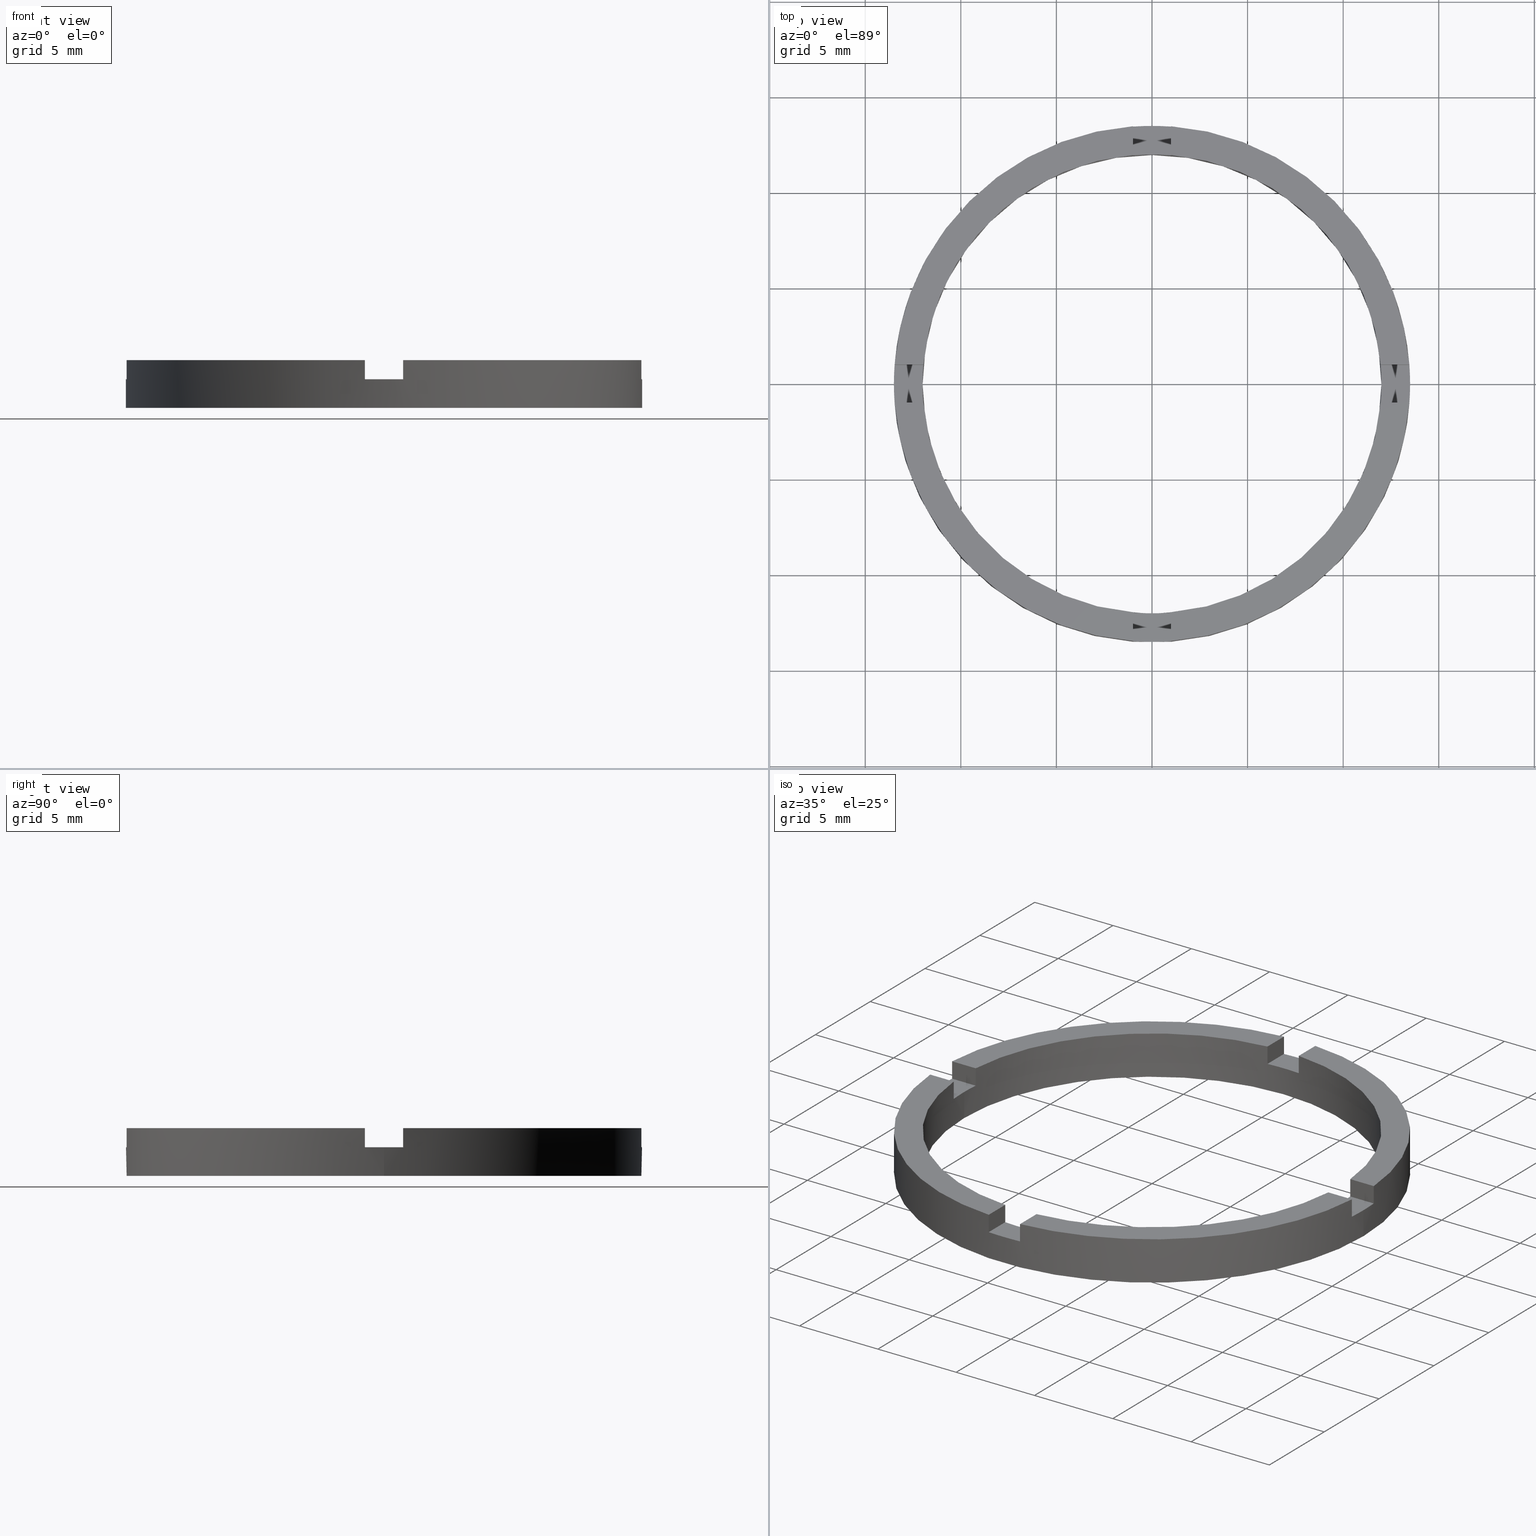
[diagram: canonical four-view strip — front | top / right | iso, engineering-drawing reading convention]
A machine part, canonical four-view strip (front | top / right | iso — engineering-drawing reading convention). The complete STEP part file that produces these views, byte-faithful:
ISO-10303-21;
HEADER;
FILE_DESCRIPTION (( 'STEP AP203' ),
    '1' );
FILE_NAME ('514061.step',
    '2024-12-26T02:33:49',
    ( 'MSI' ),
    ( '' ),
    'SwSTEP 2.0',
    'SolidWorks 2020',
    '' );
FILE_SCHEMA (( 'CONFIG_CONTROL_DESIGN' ));
ENDSEC;

DATA;
#1 = DIRECTION ( 'NONE',  ( -0.000000000000000000, -0.000000000000000000, -1.000000000000000000 ) ) ;
#2 = VECTOR ( 'NONE', #219, 1000.000000000000000 ) ;
#3 = LINE ( 'NONE', #604, #537 ) ;
#4 = DIRECTION ( 'NONE',  ( 0.000000000000000000, 0.000000000000000000, 1.000000000000000000 ) ) ;
#5 = LINE ( 'NONE', #525, #276 ) ;
#6 = CIRCLE ( 'NONE', #67, 12.00000000000000178 ) ;
#7 = CIRCLE ( 'NONE', #391, 12.00000000000000178 ) ;
#8 = FACE_OUTER_BOUND ( 'NONE', #701, .T. ) ;
#9 = FACE_OUTER_BOUND ( 'NONE', #466, .T. ) ;
#10 = CIRCLE ( 'NONE', #320, 13.50000000000000000 ) ;
#11 = CYLINDRICAL_SURFACE ( 'NONE', #81, 12.00000000000000178 ) ;
#12 = AXIS2_PLACEMENT_3D ( 'NONE', #343, #740, #346 ) ;
#13 = DIRECTION ( 'NONE',  ( 0.000000000000000000, 0.000000000000000000, 1.000000000000000000 ) ) ;
#14 = CARTESIAN_POINT ( 'NONE',  ( 0.000000000000000000, 0.000000000000000000, 0.000000000000000000 ) ) ;
#15 = CARTESIAN_POINT ( 'NONE',  ( 0.000000000000000000, 0.000000000000000000, 1.500000000000000000 ) ) ;
#16 = VECTOR ( 'NONE', #452, 1000.000000000000000 ) ;
#17 = CARTESIAN_POINT ( 'NONE',  ( 0.000000000000000000, 0.000000000000000000, 2.500000000000000000 ) ) ;
#18 = PLANE ( 'NONE',  #465 ) ;
#19 = CIRCLE ( 'NONE', #750, 13.50000000000000000 ) ;
#20 = CARTESIAN_POINT ( 'NONE',  ( 0.000000000000000000, 0.000000000000000000, 1.500000000000000000 ) ) ;
#21 = DIRECTION ( 'NONE',  ( 1.000000000000000000, 0.000000000000000000, 0.000000000000000000 ) ) ;
#22 = LINE ( 'NONE', #324, #25 ) ;
#23 = CARTESIAN_POINT ( 'NONE',  ( -1.000000000000024647, 13.46291201783625802, 2.500000000000000000 ) ) ;
#24 = AXIS2_PLACEMENT_3D ( 'NONE', #70, #130, #438 ) ;
#25 = VECTOR ( 'NONE', #353, 1000.000000000000000 ) ;
#26 = PLANE ( 'NONE',  #293 ) ;
#27 = EDGE_CURVE ( 'NONE', #702, #669, #758, .T. ) ;
#28 = FACE_OUTER_BOUND ( 'NONE', #207, .T. ) ;
#29 = DIRECTION ( 'NONE',  ( 0.000000000000000000, 0.000000000000000000, 1.000000000000000000 ) ) ;
#30 = EDGE_CURVE ( 'NONE', #422, #682, #237, .T. ) ;
#31 = VECTOR ( 'NONE', #566, 1000.000000000000000 ) ;
#32 = PERSON_AND_ORGANIZATION_ROLE ( 'design_owner' ) ;
#33 = CARTESIAN_POINT ( 'NONE',  ( 0.000000000000000000, 0.000000000000000000, 2.500000000000000000 ) ) ;
#34 = CYLINDRICAL_SURFACE ( 'NONE', #294, 12.00000000000000178 ) ;
#35 = PERSON_AND_ORGANIZATION_ROLE ( 'design_supplier' ) ;
#36 = LINE ( 'NONE', #463, #307 ) ;
#37 = ADVANCED_FACE ( 'NONE', ( #760 ), #26, .F. ) ;
#38 = VECTOR ( 'NONE', #508, 1000.000000000000000 ) ;
#39 = FACE_OUTER_BOUND ( 'NONE', #459, .T. ) ;
#40 = AXIS2_PLACEMENT_3D ( 'NONE', #151, #295, #610 ) ;
#41 = LINE ( 'NONE', #557, #318 ) ;
#42 = EDGE_CURVE ( 'NONE', #490, #404, #249, .T. ) ;
#43 = LINE ( 'NONE', #433, #319 ) ;
#44 = DIRECTION ( 'NONE',  ( 0.000000000000000000, 0.000000000000000000, 1.000000000000000000 ) ) ;
#45 = AXIS2_PLACEMENT_3D ( 'NONE', #299, #402, #309 ) ;
#46 = CARTESIAN_POINT ( 'NONE',  ( -1.000000000000163203, -13.46291201783624736, 2.500000000000000000 ) ) ;
#47 = ADVANCED_FACE ( 'NONE', ( #707 ), #103, .F. ) ;
#48 = CARTESIAN_POINT ( 'NONE',  ( 13.50000000000000000, 1.653273178848926867E-15, 2.500000000000000000 ) ) ;
#49 = DIRECTION ( 'NONE',  ( -0.000000000000000000, 0.000000000000000000, 1.000000000000000000 ) ) ;
#50 = CARTESIAN_POINT ( 'NONE',  ( 13.46291201783624736, -1.000000000000159650, 2.500000000000000000 ) ) ;
#51 = AXIS2_PLACEMENT_3D ( 'NONE', #654, #327, #410 ) ;
#52 = CARTESIAN_POINT ( 'NONE',  ( -13.50000000000000000, 0.000000000000000000, 1.500000000000000000 ) ) ;
#53 = PLANE ( 'NONE',  #333 ) ;
#54 = CC_DESIGN_DATE_AND_TIME_ASSIGNMENT ( #118, #80, ( #695 ) ) ;
#55 = DIRECTION ( 'NONE',  ( 0.000000000000000000, 1.000000000000000000, 0.000000000000000000 ) ) ;
#56 = CARTESIAN_POINT ( 'NONE',  ( 0.000000000000000000, 0.000000000000000000, 2.500000000000000000 ) ) ;
#57 = CARTESIAN_POINT ( 'NONE',  ( 0.000000000000000000, 0.000000000000000000, 1.500000000000000000 ) ) ;
#58 = EDGE_CURVE ( 'NONE', #453, #430, #203, .T. ) ;
#59 = CARTESIAN_POINT ( 'NONE',  ( 13.50000000000000000, 1.653273178848926867E-15, 1.500000000000000000 ) ) ;
#60 = DIRECTION ( 'NONE',  ( 0.000000000000000000, 0.000000000000000000, 1.000000000000000000 ) ) ;
#61 = DIRECTION ( 'NONE',  ( 0.000000000000000000, -0.000000000000000000, 1.000000000000000000 ) ) ;
#62 = EDGE_CURVE ( 'NONE', #431, #375, #417, .T. ) ;
#63 = DIRECTION ( 'NONE',  ( 0.000000000000000000, 0.000000000000000000, 1.000000000000000000 ) ) ;
#64 = DIRECTION ( 'NONE',  ( 0.000000000000000000, 0.000000000000000000, 1.000000000000000000 ) ) ;
#65 = DIRECTION ( 'NONE',  ( 0.000000000000000000, 0.000000000000000000, 1.000000000000000000 ) ) ;
#66 = CARTESIAN_POINT ( 'NONE',  ( 0.000000000000000000, 0.000000000000000000, 2.500000000000000000 ) ) ;
#67 = AXIS2_PLACEMENT_3D ( 'NONE', #339, #470, #477 ) ;
#68 = EDGE_CURVE ( 'NONE', #734, #427, #450, .T. ) ;
#69 =( NAMED_UNIT ( * ) SI_UNIT ( $, .STERADIAN. ) SOLID_ANGLE_UNIT ( ) );
#70 = CARTESIAN_POINT ( 'NONE',  ( 0.000000000000000000, 0.000000000000000000, 0.000000000000000000 ) ) ;
#71 = DIRECTION ( 'NONE',  ( -1.000000000000000000, 0.000000000000000000, 0.000000000000000000 ) ) ;
#72 = CARTESIAN_POINT ( 'NONE',  ( 0.000000000000000000, 0.000000000000000000, 0.000000000000000000 ) ) ;
#73 = DIRECTION ( 'NONE',  ( 0.000000000000000000, -0.000000000000000000, 1.000000000000000000 ) ) ;
#74 = DIRECTION ( 'NONE',  ( 1.000000000000000000, 0.000000000000000000, 0.000000000000000000 ) ) ;
#75 = APPLICATION_CONTEXT ( 'configuration controlled 3d designs of mechanical parts and assemblies' ) ;
#76 = DIRECTION ( 'NONE',  ( 1.000000000000000000, 1.301042606982605567E-16, 0.000000000000000000 ) ) ;
#77 = EDGE_CURVE ( 'NONE', #490, #161, #157, .T. ) ;
#78 = DIRECTION ( 'NONE',  ( 1.301042606982605567E-16, -1.000000000000000000, 0.000000000000000000 ) ) ;
#79 = EDGE_CURVE ( 'NONE', #650, #193, #159, .T. ) ;
#80 = DATE_TIME_ROLE ( 'creation_date' ) ;
#81 = AXIS2_PLACEMENT_3D ( 'NONE', #17, #284, #454 ) ;
#82 = PRODUCT_DEFINITION_FORMATION_WITH_SPECIFIED_SOURCE ( '�κ�', '', #468, .NOT_KNOWN. ) ;
#83 = CARTESIAN_POINT ( 'NONE',  ( -13.46291201783626157, 0.9999999999999774625, 2.500000000000000000 ) ) ;
#84 = ADVANCED_FACE ( 'NONE', ( #683 ), #181, .T. ) ;
#85 = EDGE_CURVE ( 'NONE', #717, #195, #686, .T. ) ;
#86 = CARTESIAN_POINT ( 'NONE',  ( 3.499999999999999556, 0.9999999999998400169, 1.500000000000000000 ) ) ;
#87 = DIRECTION ( 'NONE',  ( -1.000000000000000000, -4.336808689942018352E-17, 0.000000000000000000 ) ) ;
#88 = ADVANCED_FACE ( 'NONE', ( #703 ), #635, .F. ) ;
#89 = EDGE_CURVE ( 'NONE', #242, #162, #712, .T. ) ;
#90 = DIRECTION ( 'NONE',  ( -0.000000000000000000, -0.000000000000000000, -1.000000000000000000 ) ) ;
#91 = ADVANCED_FACE ( 'NONE', ( #680, #206 ), #347, .F. ) ;
#92 = EDGE_CURVE ( 'NONE', #713, #375, #716, .T. ) ;
#93 = LOCAL_TIME ( 10, 33, 49.00000000000000000, #114 ) ;
#94 = DIRECTION ( 'NONE',  ( 0.000000000000000000, 0.000000000000000000, 1.000000000000000000 ) ) ;
#95 = CARTESIAN_POINT ( 'NONE',  ( -1.000000000000024647, 11.95826074310139830, 2.500000000000000000 ) ) ;
#96 = DIRECTION ( 'NONE',  ( -4.336808689942018352E-17, 1.000000000000000000, 0.000000000000000000 ) ) ;
#97 = CARTESIAN_POINT ( 'NONE',  ( 11.95826074310141429, 0.9999999999998402389, 1.500000000000000000 ) ) ;
#98 = EDGE_CURVE ( 'NONE', #734, #150, #178, .T. ) ;
#99 = CARTESIAN_POINT ( 'NONE',  ( 0.9999999999999753530, 13.46291201783626335, 2.500000000000000000 ) ) ;
#100 = CARTESIAN_POINT ( 'NONE',  ( -13.46291201783625802, -1.000000000000022649, 1.500000000000000000 ) ) ;
#101 = DIRECTION ( 'NONE',  ( 1.000000000000000000, 0.000000000000000000, 0.000000000000000000 ) ) ;
#102 = DIRECTION ( 'NONE',  ( 0.000000000000000000, 0.000000000000000000, 1.000000000000000000 ) ) ;
#103 = PLANE ( 'NONE',  #259 ) ;
#104 = AXIS2_PLACEMENT_3D ( 'NONE', #608, #601, #679 ) ;
#105 = CC_DESIGN_APPROVAL ( #589, ( #165 ) ) ;
#106 = CARTESIAN_POINT ( 'NONE',  ( -11.95826074310139830, -1.000000000000022427, 2.500000000000000000 ) ) ;
#107 = DIRECTION ( 'NONE',  ( 1.000000000000000000, 0.000000000000000000, 0.000000000000000000 ) ) ;
#108 = AXIS2_PLACEMENT_3D ( 'NONE', #15, #63, #109 ) ;
#109 = DIRECTION ( 'NONE',  ( 1.000000000000000000, 0.000000000000000000, 0.000000000000000000 ) ) ;
#110 = CARTESIAN_POINT ( 'NONE',  ( 3.499999999999999556, -1.000000000000160094, 1.500000000000000000 ) ) ;
#111 = EDGE_CURVE ( 'NONE', #434, #221, #696, .T. ) ;
#112 = DIRECTION ( 'NONE',  ( 1.000000000000000000, 0.000000000000000000, 0.000000000000000000 ) ) ;
#113 = CC_DESIGN_PERSON_AND_ORGANIZATION_ASSIGNMENT ( #116, #32, ( #468 ) ) ;
#114 = COORDINATED_UNIVERSAL_TIME_OFFSET ( 8, 0, .AHEAD. ) ;
#115 = ORIENTED_EDGE ( 'NONE', *, *, #738, .F. ) ;
#116 = PERSON_AND_ORGANIZATION ( #461, #400 ) ;
#117 = DIRECTION ( 'NONE',  ( -0.000000000000000000, 0.000000000000000000, 1.000000000000000000 ) ) ;
#118 = DATE_AND_TIME ( #143, #649 ) ;
#119 = EDGE_LOOP ( 'NONE', ( #201, #217, #692, #386 ) ) ;
#120 = LOCAL_TIME ( 10, 33, 49.00000000000000000, #124 ) ;
#121 = VERTEX_POINT ( 'NONE', #257 ) ;
#122 = DIRECTION ( 'NONE',  ( -1.000000000000000000, -1.734723475976807341E-16, 0.000000000000000000 ) ) ;
#123 = EDGE_CURVE ( 'NONE', #191, #145, #441, .T. ) ;
#124 = COORDINATED_UNIVERSAL_TIME_OFFSET ( 8, 0, .AHEAD. ) ;
#125 = ORIENTED_EDGE ( 'NONE', *, *, #651, .F. ) ;
#126 = ORIENTED_EDGE ( 'NONE', *, *, #613, .F. ) ;
#127 = APPROVAL_PERSON_ORGANIZATION ( #371, #460, #367 ) ;
#128 = ORIENTED_EDGE ( 'NONE', *, *, #613, .T. ) ;
#129 = ORIENTED_EDGE ( 'NONE', *, *, #574, .T. ) ;
#130 = DIRECTION ( 'NONE',  ( 0.000000000000000000, 0.000000000000000000, 1.000000000000000000 ) ) ;
#131 = ORIENTED_EDGE ( 'NONE', *, *, #715, .T. ) ;
#132 = APPROVAL_DATE_TIME ( #368, #321 ) ;
#133 = ORIENTED_EDGE ( 'NONE', *, *, #574, .F. ) ;
#134 = CARTESIAN_POINT ( 'NONE',  ( -1.000000000000163425, -11.95826074310138765, 1.500000000000000000 ) ) ;
#135 = APPROVAL_DATE_TIME ( #381, #460 ) ;
#136 = ORIENTED_EDGE ( 'NONE', *, *, #27, .F. ) ;
#137 = PERSON_AND_ORGANIZATION ( #461, #400 ) ;
#138 = CARTESIAN_POINT ( 'NONE',  ( 0.9999999999999753530, 11.95826074310140363, 2.500000000000000000 ) ) ;
#139 = ORIENTED_EDGE ( 'NONE', *, *, #281, .F. ) ;
#140 = ORIENTED_EDGE ( 'NONE', *, *, #111, .F. ) ;
#141 = PERSON_AND_ORGANIZATION ( #461, #400 ) ;
#142 = ORIENTED_EDGE ( 'NONE', *, *, #258, .F. ) ;
#143 = CALENDAR_DATE ( 2024, 26, 12 ) ;
#144 = PERSON_AND_ORGANIZATION ( #461, #400 ) ;
#145 = VERTEX_POINT ( 'NONE', #591 ) ;
#146 = APPROVAL_STATUS ( 'not_yet_approved' ) ;
#147 = ORIENTED_EDGE ( 'NONE', *, *, #593, .T. ) ;
#148 = DIRECTION ( 'NONE',  ( -1.301042606982605567E-16, 1.000000000000000000, 0.000000000000000000 ) ) ;
#149 = ORIENTED_EDGE ( 'NONE', *, *, #429, .T. ) ;
#150 = VERTEX_POINT ( 'NONE', #736 ) ;
#151 = CARTESIAN_POINT ( 'NONE',  ( 0.000000000000000000, 0.000000000000000000, 2.500000000000000000 ) ) ;
#152 = ORIENTED_EDGE ( 'NONE', *, *, #98, .T. ) ;
#153 = DIRECTION ( 'NONE',  ( 1.000000000000000000, 0.000000000000000000, 0.000000000000000000 ) ) ;
#154 = ORIENTED_EDGE ( 'NONE', *, *, #89, .F. ) ;
#155 = ORIENTED_EDGE ( 'NONE', *, *, #587, .F. ) ;
#156 = DIRECTION ( 'NONE',  ( 0.000000000000000000, 0.000000000000000000, 1.000000000000000000 ) ) ;
#157 = LINE ( 'NONE', #252, #710 ) ;
#158 = ORIENTED_EDGE ( 'NONE', *, *, #505, .T. ) ;
#159 = LINE ( 'NONE', #627, #200 ) ;
#160 = ORIENTED_EDGE ( 'NONE', *, *, #631, .F. ) ;
#161 = VERTEX_POINT ( 'NONE', #99 ) ;
#162 = VERTEX_POINT ( 'NONE', #361 ) ;
#163 = EDGE_LOOP ( 'NONE', ( #136, #204 ) ) ;
#164 = AXIS2_PLACEMENT_3D ( 'NONE', #56, #446, #326 ) ;
#165 = SECURITY_CLASSIFICATION ( '', '', #527 ) ;
#166 = ORIENTED_EDGE ( 'NONE', *, *, #501, .T. ) ;
#167 = ADVANCED_FACE ( 'NONE', ( #187 ), #11, .F. ) ;
#168 = CARTESIAN_POINT ( 'NONE',  ( -13.46291201783625802, -1.000000000000022649, 2.500000000000000000 ) ) ;
#169 = ORIENTED_EDGE ( 'NONE', *, *, #304, .F. ) ;
#170 = ORIENTED_EDGE ( 'NONE', *, *, #30, .F. ) ;
#171 = ORIENTED_EDGE ( 'NONE', *, *, #749, .T. ) ;
#172 = ORIENTED_EDGE ( 'NONE', *, *, #501, .F. ) ;
#173 = ORIENTED_EDGE ( 'NONE', *, *, #77, .F. ) ;
#174 = ADVANCED_FACE ( 'NONE', ( #539 ), #211, .T. ) ;
#175 = ORIENTED_EDGE ( 'NONE', *, *, #268, .T. ) ;
#176 = CARTESIAN_POINT ( 'NONE',  ( -1.000000000000024647, 13.46291201783625802, 1.500000000000000000 ) ) ;
#177 = AXIS2_PLACEMENT_3D ( 'NONE', #573, #763, #594 ) ;
#178 = CIRCLE ( 'NONE', #45, 13.50000000000000000 ) ;
#179 = EDGE_LOOP ( 'NONE', ( #160, #737, #129, #186 ) ) ;
#180 = ORIENTED_EDGE ( 'NONE', *, *, #548, .F. ) ;
#181 = PLANE ( 'NONE',  #359 ) ;
#182 = VECTOR ( 'NONE', #344, 1000.000000000000000 ) ;
#183 = ORIENTED_EDGE ( 'NONE', *, *, #623, .F. ) ;
#184 = EDGE_CURVE ( 'NONE', #191, #161, #10, .T. ) ;
#185 = DIRECTION ( 'NONE',  ( 0.000000000000000000, -0.000000000000000000, 1.000000000000000000 ) ) ;
#186 = ORIENTED_EDGE ( 'NONE', *, *, #85, .F. ) ;
#187 = FACE_OUTER_BOUND ( 'NONE', #681, .T. ) ;
#188 = VERTEX_POINT ( 'NONE', #334 ) ;
#189 = ORIENTED_EDGE ( 'NONE', *, *, #340, .T. ) ;
#190 = CARTESIAN_POINT ( 'NONE',  ( 0.9999999999998354649, -3.500000000000183409, 1.500000000000000000 ) ) ;
#191 = VERTEX_POINT ( 'NONE', #569 ) ;
#192 = CARTESIAN_POINT ( 'NONE',  ( -1.000000000000024647, 11.95826074310139830, 2.500000000000000000 ) ) ;
#193 = VERTEX_POINT ( 'NONE', #322 ) ;
#194 = DIRECTION ( 'NONE',  ( 0.000000000000000000, 0.000000000000000000, 1.000000000000000000 ) ) ;
#195 = VERTEX_POINT ( 'NONE', #507 ) ;
#196 = CARTESIAN_POINT ( 'NONE',  ( -1.000000000000163425, -11.95826074310138765, 2.500000000000000000 ) ) ;
#197 = DIRECTION ( 'NONE',  ( 1.000000000000000000, 0.000000000000000000, -0.000000000000000000 ) ) ;
#198 = EDGE_LOOP ( 'NONE', ( #462, #189, #721, #172, #437, #727, #689, #637, #215, #667, #212, #406 ) ) ;
#199 = EDGE_CURVE ( 'NONE', #431, #434, #272, .T. ) ;
#200 = VECTOR ( 'NONE', #714, 1000.000000000000000 ) ;
#201 = ORIENTED_EDGE ( 'NONE', *, *, #409, .F. ) ;
#202 = AXIS2_PLACEMENT_3D ( 'NONE', #245, #301, #590 ) ;
#203 = LINE ( 'NONE', #262, #671 ) ;
#204 = ORIENTED_EDGE ( 'NONE', *, *, #600, .F. ) ;
#205 = CARTESIAN_POINT ( 'NONE',  ( -12.00000000000000178, 0.000000000000000000, 2.500000000000000000 ) ) ;
#206 = FACE_BOUND ( 'NONE', #448, .T. ) ;
#207 = EDGE_LOOP ( 'NONE', ( #718, #474, #674, #662 ) ) ;
#208 = DIRECTION ( 'NONE',  ( 1.000000000000000000, 0.000000000000000000, 0.000000000000000000 ) ) ;
#209 = ORIENTED_EDGE ( 'NONE', *, *, #300, .F. ) ;
#210 = ORIENTED_EDGE ( 'NONE', *, *, #449, .T. ) ;
#211 = PLANE ( 'NONE',  #164 ) ;
#212 = ORIENTED_EDGE ( 'NONE', *, *, #184, .F. ) ;
#213 = PLANE ( 'NONE',  #51 ) ;
#214 = ORIENTED_EDGE ( 'NONE', *, *, #342, .T. ) ;
#215 = ORIENTED_EDGE ( 'NONE', *, *, #42, .F. ) ;
#216 = CARTESIAN_POINT ( 'NONE',  ( -13.46291201783626157, 0.9999999999999774625, 1.500000000000000000 ) ) ;
#217 = ORIENTED_EDGE ( 'NONE', *, *, #429, .F. ) ;
#218 = ORIENTED_EDGE ( 'NONE', *, *, #651, .T. ) ;
#219 = DIRECTION ( 'NONE',  ( -0.000000000000000000, -0.000000000000000000, -1.000000000000000000 ) ) ;
#220 = ORIENTED_EDGE ( 'NONE', *, *, #250, .T. ) ;
#221 = VERTEX_POINT ( 'NONE', #264 ) ;
#222 = CARTESIAN_POINT ( 'NONE',  ( 0.000000000000000000, 0.000000000000000000, 1.500000000000000000 ) ) ;
#223 = ORIENTED_EDGE ( 'NONE', *, *, #580, .T. ) ;
#224 = ORIENTED_EDGE ( 'NONE', *, *, #300, .T. ) ;
#225 = EDGE_LOOP ( 'NONE', ( #171, #759, #158, #634, #155, #214 ) ) ;
#226 = CARTESIAN_POINT ( 'NONE',  ( 0.000000000000000000, 0.000000000000000000, 1.500000000000000000 ) ) ;
#227 = EDGE_CURVE ( 'NONE', #191, #647, #3, .T. ) ;
#228 = DIRECTION ( 'NONE',  ( -0.000000000000000000, -0.000000000000000000, -1.000000000000000000 ) ) ;
#229 = ORIENTED_EDGE ( 'NONE', *, *, #85, .T. ) ;
#230 = CARTESIAN_POINT ( 'NONE',  ( 0.000000000000000000, 0.000000000000000000, 1.500000000000000000 ) ) ;
#231 = ORIENTED_EDGE ( 'NONE', *, *, #281, .T. ) ;
#232 = ORIENTED_EDGE ( 'NONE', *, *, #111, .T. ) ;
#233 = CARTESIAN_POINT ( 'NONE',  ( -13.50000000000000000, 0.000000000000000000, 0.000000000000000000 ) ) ;
#234 = DIRECTION ( 'NONE',  ( 0.000000000000000000, 1.000000000000000000, 0.000000000000000000 ) ) ;
#235 = VECTOR ( 'NONE', #617, 1000.000000000000000 ) ;
#236 = APPLICATION_PROTOCOL_DEFINITION ( 'international standard', 'config_control_design', 1994, #75 ) ;
#237 = LINE ( 'NONE', #503, #496 ) ;
#238 = ORIENTED_EDGE ( 'NONE', *, *, #356, .F. ) ;
#239 = VERTEX_POINT ( 'NONE', #521 ) ;
#240 = ORIENTED_EDGE ( 'NONE', *, *, #42, .T. ) ;
#241 = PLANE ( 'NONE',  #622 ) ;
#242 = VERTEX_POINT ( 'NONE', #134 ) ;
#243 = AXIS2_PLACEMENT_3D ( 'NONE', #624, #407, #397 ) ;
#244 = ADVANCED_FACE ( 'NONE', ( #9 ), #526, .T. ) ;
#245 = CARTESIAN_POINT ( 'NONE',  ( 0.000000000000000000, 0.000000000000000000, 1.500000000000000000 ) ) ;
#246 = LINE ( 'NONE', #48, #248 ) ;
#247 = ORIENTED_EDGE ( 'NONE', *, *, #738, .T. ) ;
#248 = VECTOR ( 'NONE', #1, 1000.000000000000000 ) ;
#249 = CIRCLE ( 'NONE', #551, 13.50000000000000000 ) ;
#250 = EDGE_CURVE ( 'NONE', #663, #195, #530, .T. ) ;
#251 = FACE_OUTER_BOUND ( 'NONE', #424, .T. ) ;
#252 = CARTESIAN_POINT ( 'NONE',  ( 0.9999999999999753530, 13.46291201783626335, 2.500000000000000000 ) ) ;
#253 = LINE ( 'NONE', #395, #768 ) ;
#254 = CARTESIAN_POINT ( 'NONE',  ( 12.00000000000000178, 1.469576158976824144E-15, 1.500000000000000000 ) ) ;
#255 = VECTOR ( 'NONE', #384, 1000.000000000000000 ) ;
#256 = AXIS2_PLACEMENT_3D ( 'NONE', #270, #362, #553 ) ;
#257 = CARTESIAN_POINT ( 'NONE',  ( 12.00000000000000178, 1.469576158976824144E-15, 0.000000000000000000 ) ) ;
#258 = EDGE_CURVE ( 'NONE', #650, #444, #534, .T. ) ;
#259 = AXIS2_PLACEMENT_3D ( 'NONE', #550, #266, #323 ) ;
#260 = CIRCLE ( 'NONE', #279, 12.00000000000000178 ) ;
#261 = LINE ( 'NONE', #694, #518 ) ;
#262 = CARTESIAN_POINT ( 'NONE',  ( 11.95826074310138765, -1.000000000000159872, 2.500000000000000000 ) ) ;
#263 = VECTOR ( 'NONE', #775, 1000.000000000000000 ) ;
#264 = CARTESIAN_POINT ( 'NONE',  ( -1.000000000000024647, 11.95826074310139830, 1.500000000000000000 ) ) ;
#265 = CIRCLE ( 'NONE', #202, 12.00000000000000178 ) ;
#266 = DIRECTION ( 'NONE',  ( -1.000000000000000000, -1.301042606982605567E-16, 0.000000000000000000 ) ) ;
#267 = LINE ( 'NONE', #196, #568 ) ;
#268 = EDGE_CURVE ( 'NONE', #401, #430, #7, .T. ) ;
#269 = DIRECTION ( 'NONE',  ( 0.000000000000000000, 0.000000000000000000, 1.000000000000000000 ) ) ;
#270 = CARTESIAN_POINT ( 'NONE',  ( -3.500000000000186962, 0.9999999999999792388, 1.500000000000000000 ) ) ;
#271 = DIRECTION ( 'NONE',  ( 4.336808689942018352E-17, -1.000000000000000000, 0.000000000000000000 ) ) ;
#272 = LINE ( 'NONE', #562, #275 ) ;
#273 = LINE ( 'NONE', #351, #528 ) ;
#274 = CARTESIAN_POINT ( 'NONE',  ( -3.500000000000186962, 0.9999999999999792388, 2.500000000000000000 ) ) ;
#275 = VECTOR ( 'NONE', #597, 1000.000000000000000 ) ;
#276 = VECTOR ( 'NONE', #234, 1000.000000000000000 ) ;
#277 = DIRECTION ( 'NONE',  ( 0.000000000000000000, 0.000000000000000000, 1.000000000000000000 ) ) ;
#278 = LINE ( 'NONE', #779, #535 ) ;
#279 = AXIS2_PLACEMENT_3D ( 'NONE', #770, #467, #74 ) ;
#280 = LINE ( 'NONE', #274, #541 ) ;
#281 = EDGE_CURVE ( 'NONE', #379, #393, #282, .T. ) ;
#282 = LINE ( 'NONE', #205, #2 ) ;
#283 = PLANE ( 'NONE',  #177 ) ;
#284 = DIRECTION ( 'NONE',  ( -0.000000000000000000, -0.000000000000000000, -1.000000000000000000 ) ) ;
#285 = CARTESIAN_POINT ( 'NONE',  ( 0.9999999999999753530, 13.46291201783626335, 1.500000000000000000 ) ) ;
#286 = CC_DESIGN_SECURITY_CLASSIFICATION ( #165, ( #82 ) ) ;
#287 = PLANE ( 'NONE',  #755 ) ;
#288 = CARTESIAN_POINT ( 'NONE',  ( 0.000000000000000000, 0.000000000000000000, 1.500000000000000000 ) ) ;
#289 = MECHANICAL_CONTEXT ( 'NONE', #766, 'mechanical' ) ;
#290 = CARTESIAN_POINT ( 'NONE',  ( -12.00000000000000178, 0.000000000000000000, 0.000000000000000000 ) ) ;
#291 = EDGE_CURVE ( 'NONE', #682, #375, #280, .T. ) ;
#292 = CIRCLE ( 'NONE', #641, 13.50000000000000000 ) ;
#293 = AXIS2_PLACEMENT_3D ( 'NONE', #110, #271, #329 ) ;
#294 = AXIS2_PLACEMENT_3D ( 'NONE', #330, #228, #602 ) ;
#295 = DIRECTION ( 'NONE',  ( 0.000000000000000000, 0.000000000000000000, 1.000000000000000000 ) ) ;
#296 = CARTESIAN_POINT ( 'NONE',  ( 0.9999999999998365752, -11.95826074310141429, 2.500000000000000000 ) ) ;
#297 = CIRCLE ( 'NONE', #108, 12.00000000000000178 ) ;
#298 = FACE_OUTER_BOUND ( 'NONE', #119, .T. ) ;
#299 = CARTESIAN_POINT ( 'NONE',  ( 0.000000000000000000, 0.000000000000000000, 2.500000000000000000 ) ) ;
#300 = EDGE_CURVE ( 'NONE', #444, #150, #273, .T. ) ;
#301 = DIRECTION ( 'NONE',  ( 0.000000000000000000, 0.000000000000000000, 1.000000000000000000 ) ) ;
#302 = DIRECTION ( 'NONE',  ( -1.000000000000000000, 0.000000000000000000, 0.000000000000000000 ) ) ;
#303 = CARTESIAN_POINT ( 'NONE',  ( 0.000000000000000000, 0.000000000000000000, 2.500000000000000000 ) ) ;
#304 = EDGE_CURVE ( 'NONE', #239, #490, #5, .T. ) ;
#305 = ADVANCED_FACE ( 'NONE', ( #8 ), #577, .T. ) ;
#306 = SHAPE_DEFINITION_REPRESENTATION ( #524, #605 ) ;
#307 = VECTOR ( 'NONE', #502, 1000.000000000000000 ) ;
#308 = VECTOR ( 'NONE', #560, 1000.000000000000000 ) ;
#309 = DIRECTION ( 'NONE',  ( 1.000000000000000000, 0.000000000000000000, 0.000000000000000000 ) ) ;
#310 = FACE_OUTER_BOUND ( 'NONE', #657, .T. ) ;
#311 = PLANE ( 'NONE',  #243 ) ;
#312 = DIRECTION ( 'NONE',  ( 1.000000000000000000, 0.000000000000000000, -0.000000000000000000 ) ) ;
#313 = LINE ( 'NONE', #522, #308 ) ;
#314 = CIRCLE ( 'NONE', #559, 13.50000000000000000 ) ;
#315 = DESIGN_CONTEXT ( 'detailed design', #75, 'design' ) ;
#316 = ADVANCED_FACE ( 'NONE', ( #532 ), #311, .F. ) ;
#317 = LINE ( 'NONE', #443, #38 ) ;
#318 = VECTOR ( 'NONE', #598, 1000.000000000000000 ) ;
#319 = VECTOR ( 'NONE', #494, 1000.000000000000000 ) ;
#320 = AXIS2_PLACEMENT_3D ( 'NONE', #513, #432, #21 ) ;
#321 = APPROVAL ( #146, 'δָ��' ) ;
#322 = CARTESIAN_POINT ( 'NONE',  ( -11.95826074310139830, -1.000000000000022427, 1.500000000000000000 ) ) ;
#323 = DIRECTION ( 'NONE',  ( 1.301042606982605567E-16, -1.000000000000000000, 0.000000000000000000 ) ) ;
#324 = CARTESIAN_POINT ( 'NONE',  ( 3.499999999999999556, -1.000000000000160094, 1.500000000000000000 ) ) ;
#325 = EDGE_CURVE ( 'NONE', #242, #188, #6, .T. ) ;
#326 = DIRECTION ( 'NONE',  ( 1.000000000000000000, 0.000000000000000000, -0.000000000000000000 ) ) ;
#327 = DIRECTION ( 'NONE',  ( 0.000000000000000000, 0.000000000000000000, 1.000000000000000000 ) ) ;
#328 = CARTESIAN_POINT ( 'NONE',  ( -13.46291201783625802, -1.000000000000022649, 2.500000000000000000 ) ) ;
#329 = DIRECTION ( 'NONE',  ( 1.000000000000000000, 4.336808689942018352E-17, 0.000000000000000000 ) ) ;
#330 = CARTESIAN_POINT ( 'NONE',  ( 0.000000000000000000, 0.000000000000000000, 2.500000000000000000 ) ) ;
#331 = EDGE_CURVE ( 'NONE', #239, #706, #278, .T. ) ;
#332 = DIRECTION ( 'NONE',  ( 1.000000000000000000, 0.000000000000000000, 0.000000000000000000 ) ) ;
#333 = AXIS2_PLACEMENT_3D ( 'NONE', #544, #420, #547 ) ;
#334 = CARTESIAN_POINT ( 'NONE',  ( 0.9999999999998365752, -11.95826074310141429, 1.500000000000000000 ) ) ;
#335 = CARTESIAN_POINT ( 'NONE',  ( -1.000000000000024647, 3.500000000000003109, 1.500000000000000000 ) ) ;
#336 = CARTESIAN_POINT ( 'NONE',  ( 13.50000000000000000, 1.653273178848926867E-15, 0.000000000000000000 ) ) ;
#337 = CARTESIAN_POINT ( 'NONE',  ( 0.000000000000000000, 0.000000000000000000, 1.500000000000000000 ) ) ;
#338 = APPROVAL_STATUS ( 'not_yet_approved' ) ;
#339 = CARTESIAN_POINT ( 'NONE',  ( 0.000000000000000000, 0.000000000000000000, 1.500000000000000000 ) ) ;
#340 = EDGE_CURVE ( 'NONE', #729, #669, #246, .T. ) ;
#341 = DIRECTION ( 'NONE',  ( 0.000000000000000000, 0.000000000000000000, 1.000000000000000000 ) ) ;
#342 = EDGE_CURVE ( 'NONE', #422, #713, #497, .T. ) ;
#343 = CARTESIAN_POINT ( 'NONE',  ( 0.000000000000000000, 0.000000000000000000, 1.500000000000000000 ) ) ;
#344 = DIRECTION ( 'NONE',  ( -0.000000000000000000, -0.000000000000000000, -1.000000000000000000 ) ) ;
#345 = CARTESIAN_POINT ( 'NONE',  ( 0.9999999999998366862, -13.46291201783627045, 1.500000000000000000 ) ) ;
#346 = DIRECTION ( 'NONE',  ( 1.000000000000000000, 0.000000000000000000, 0.000000000000000000 ) ) ;
#347 = PLANE ( 'NONE',  #495 ) ;
#348 = DIRECTION ( 'NONE',  ( 1.000000000000000000, 0.000000000000000000, 0.000000000000000000 ) ) ;
#349 = AXIS2_PLACEMENT_3D ( 'NONE', #337, #341, #540 ) ;
#350 = DIRECTION ( 'NONE',  ( 1.301042606982605567E-16, -1.000000000000000000, 0.000000000000000000 ) ) ;
#351 = CARTESIAN_POINT ( 'NONE',  ( -1.000000000000164535, -3.500000000000183409, 2.500000000000000000 ) ) ;
#352 = DIRECTION ( 'NONE',  ( 1.000000000000000000, 0.000000000000000000, 0.000000000000000000 ) ) ;
#353 = DIRECTION ( 'NONE',  ( 1.000000000000000000, 4.336808689942018352E-17, 0.000000000000000000 ) ) ;
#354 = CC_DESIGN_PERSON_AND_ORGANIZATION_ASSIGNMENT ( #137, #578, ( #165 ) ) ;
#355 = PLANE ( 'NONE',  #256 ) ;
#356 = EDGE_CURVE ( 'NONE', #439, #188, #761, .T. ) ;
#357 = AXIS2_PLACEMENT_3D ( 'NONE', #14, #60, #107 ) ;
#358 = CARTESIAN_POINT ( 'NONE',  ( 0.000000000000000000, 0.000000000000000000, 0.000000000000000000 ) ) ;
#359 = AXIS2_PLACEMENT_3D ( 'NONE', #728, #538, #312 ) ;
#360 = CC_DESIGN_PERSON_AND_ORGANIZATION_ASSIGNMENT ( #387, #35, ( #82 ) ) ;
#361 = CARTESIAN_POINT ( 'NONE',  ( -1.000000000000163203, -13.46291201783624736, 1.500000000000000000 ) ) ;
#362 = DIRECTION ( 'NONE',  ( -1.734723475976807341E-16, 1.000000000000000000, 0.000000000000000000 ) ) ;
#363 = DIRECTION ( 'NONE',  ( 0.000000000000000000, 0.000000000000000000, 1.000000000000000000 ) ) ;
#364 = CARTESIAN_POINT ( 'NONE',  ( -3.500000000000186962, -1.000000000000020872, 1.500000000000000000 ) ) ;
#365 = EDGE_CURVE ( 'NONE', #647, #425, #498, .T. ) ;
#366 = CARTESIAN_POINT ( 'NONE',  ( 0.9999999999998366862, -13.46291201783627045, 2.500000000000000000 ) ) ;
#367 = APPROVAL_ROLE ( '' ) ;
#368 = DATE_AND_TIME ( #376, #653 ) ;
#369 = ORIENTED_EDGE ( 'NONE', *, *, #580, .F. ) ;
#370 = CARTESIAN_POINT ( 'NONE',  ( 0.000000000000000000, 0.000000000000000000, 0.000000000000000000 ) ) ;
#371 = PERSON_AND_ORGANIZATION ( #461, #400 ) ;
#372 = ORIENTED_EDGE ( 'NONE', *, *, #199, .F. ) ;
#373 = AXIS2_PLACEMENT_3D ( 'NONE', #288, #73, #614 ) ;
#374 = PERSON_AND_ORGANIZATION ( #461, #400 ) ;
#375 = VERTEX_POINT ( 'NONE', #479 ) ;
#376 = CALENDAR_DATE ( 2024, 26, 12 ) ;
#377 = ORIENTED_EDGE ( 'NONE', *, *, #548, .T. ) ;
#378 = ORIENTED_EDGE ( 'NONE', *, *, #623, .T. ) ;
#379 = VERTEX_POINT ( 'NONE', #582 ) ;
#380 = DIRECTION ( 'NONE',  ( -1.301042606982605567E-16, 1.000000000000000000, -0.000000000000000000 ) ) ;
#381 = DATE_AND_TIME ( #644, #120 ) ;
#382 = ADVANCED_FACE ( 'NONE', ( #500 ), #515, .T. ) ;
#383 = ORIENTED_EDGE ( 'NONE', *, *, #449, .F. ) ;
#384 = DIRECTION ( 'NONE',  ( -1.000000000000000000, -4.336808689942018352E-17, -0.000000000000000000 ) ) ;
#385 = APPROVAL_PERSON_ORGANIZATION ( #374, #321, #611 ) ;
#386 = ORIENTED_EDGE ( 'NONE', *, *, #184, .T. ) ;
#387 = PERSON_AND_ORGANIZATION ( #461, #400 ) ;
#388 = ORIENTED_EDGE ( 'NONE', *, *, #487, .T. ) ;
#389 = DIRECTION ( 'NONE',  ( 0.000000000000000000, 0.000000000000000000, 1.000000000000000000 ) ) ;
#390 = ADVANCED_FACE ( 'NONE', ( #510 ), #241, .F. ) ;
#391 = AXIS2_PLACEMENT_3D ( 'NONE', #744, #64, #112 ) ;
#392 = CC_DESIGN_APPROVAL ( #321, ( #695 ) ) ;
#393 = VERTEX_POINT ( 'NONE', #290 ) ;
#394 = ORIENTED_EDGE ( 'NONE', *, *, #258, .T. ) ;
#395 = CARTESIAN_POINT ( 'NONE',  ( -13.50000000000000000, 0.000000000000000000, 2.500000000000000000 ) ) ;
#396 = COORDINATED_UNIVERSAL_TIME_OFFSET ( 8, 0, .AHEAD. ) ;
#397 = DIRECTION ( 'NONE',  ( 0.000000000000000000, 0.000000000000000000, -1.000000000000000000 ) ) ;
#398 = CALENDAR_DATE ( 2024, 26, 12 ) ;
#399 = ORIENTED_EDGE ( 'NONE', *, *, #529, .T. ) ;
#400 = ORGANIZATION ( 'δָ��', 'δָ��', '' ) ;
#401 = VERTEX_POINT ( 'NONE', #296 ) ;
#402 = DIRECTION ( 'NONE',  ( 0.000000000000000000, 0.000000000000000000, 1.000000000000000000 ) ) ;
#403 = AXIS2_PLACEMENT_3D ( 'NONE', #358, #269, #596 ) ;
#404 = VERTEX_POINT ( 'NONE', #176 ) ;
#405 = DIRECTION ( 'NONE',  ( 1.000000000000000000, 0.000000000000000000, 0.000000000000000000 ) ) ;
#406 = ORIENTED_EDGE ( 'NONE', *, *, #227, .T. ) ;
#407 = DIRECTION ( 'NONE',  ( 1.000000000000000000, -0.000000000000000000, 0.000000000000000000 ) ) ;
#408 = ORIENTED_EDGE ( 'NONE', *, *, #558, .T. ) ;
#409 = EDGE_CURVE ( 'NONE', #706, #161, #519, .T. ) ;
#410 = DIRECTION ( 'NONE',  ( 1.000000000000000000, 0.000000000000000000, -0.000000000000000000 ) ) ;
#411 = ORIENTED_EDGE ( 'NONE', *, *, #250, .F. ) ;
#412 = ORIENTED_EDGE ( 'NONE', *, *, #365, .T. ) ;
#413 = DIRECTION ( 'NONE',  ( -0.000000000000000000, -0.000000000000000000, -1.000000000000000000 ) ) ;
#414 = CC_DESIGN_PERSON_AND_ORGANIZATION_ASSIGNMENT ( #141, #469, ( #82 ) ) ;
#415 = ORIENTED_EDGE ( 'NONE', *, *, #331, .T. ) ;
#416 = PLANE ( 'NONE',  #676 ) ;
#417 = CIRCLE ( 'NONE', #754, 13.50000000000000000 ) ;
#418 = ORIENTED_EDGE ( 'NONE', *, *, #409, .T. ) ;
#419 = ADVANCED_FACE ( 'NONE', ( #251 ), #53, .F. ) ;
#420 = DIRECTION ( 'NONE',  ( 1.734723475976807341E-16, -1.000000000000000000, 0.000000000000000000 ) ) ;
#421 = ORIENTED_EDGE ( 'NONE', *, *, #505, .F. ) ;
#422 = VERTEX_POINT ( 'NONE', #632 ) ;
#423 = VECTOR ( 'NONE', #156, 1000.000000000000000 ) ;
#424 = EDGE_LOOP ( 'NONE', ( #377, #675, #421, #445 ) ) ;
#425 = VERTEX_POINT ( 'NONE', #97 ) ;
#426 = ORIENTED_EDGE ( 'NONE', *, *, #609, .T. ) ;
#427 = VERTEX_POINT ( 'NONE', #100 ) ;
#428 = ORIENTED_EDGE ( 'NONE', *, *, #365, .F. ) ;
#429 = EDGE_CURVE ( 'NONE', #145, #706, #764, .T. ) ;
#430 = VERTEX_POINT ( 'NONE', #492 ) ;
#431 = VERTEX_POINT ( 'NONE', #739 ) ;
#432 = DIRECTION ( 'NONE',  ( 0.000000000000000000, 0.000000000000000000, 1.000000000000000000 ) ) ;
#433 = CARTESIAN_POINT ( 'NONE',  ( 3.499999999999999556, -1.000000000000160094, 2.500000000000000000 ) ) ;
#434 = VERTEX_POINT ( 'NONE', #95 ) ;
#435 = ORIENTED_EDGE ( 'NONE', *, *, #542, .F. ) ;
#436 = VECTOR ( 'NONE', #350, 1000.000000000000000 ) ;
#437 = ORIENTED_EDGE ( 'NONE', *, *, #749, .F. ) ;
#438 = DIRECTION ( 'NONE',  ( 1.000000000000000000, 0.000000000000000000, 0.000000000000000000 ) ) ;
#439 = VERTEX_POINT ( 'NONE', #345 ) ;
#440 = ORIENTED_EDGE ( 'NONE', *, *, #529, .F. ) ;
#441 = LINE ( 'NONE', #486, #700 ) ;
#442 = ORIENTED_EDGE ( 'NONE', *, *, #356, .T. ) ;
#443 = CARTESIAN_POINT ( 'NONE',  ( -1.000000000000024647, 3.500000000000003109, 1.500000000000000000 ) ) ;
#444 = VERTEX_POINT ( 'NONE', #628 ) ;
#445 = ORIENTED_EDGE ( 'NONE', *, *, #68, .F. ) ;
#446 = DIRECTION ( 'NONE',  ( 0.000000000000000000, 0.000000000000000000, 1.000000000000000000 ) ) ;
#447 = DIRECTION ( 'NONE',  ( 0.000000000000000000, 0.000000000000000000, 1.000000000000000000 ) ) ;
#448 = EDGE_LOOP ( 'NONE', ( #378, #720 ) ) ;
#449 = EDGE_CURVE ( 'NONE', #239, #221, #771, .T. ) ;
#450 = LINE ( 'NONE', #168, #708 ) ;
#451 = VERTEX_POINT ( 'NONE', #254 ) ;
#452 = DIRECTION ( 'NONE',  ( -0.000000000000000000, -0.000000000000000000, -1.000000000000000000 ) ) ;
#453 = VERTEX_POINT ( 'NONE', #588 ) ;
#454 = DIRECTION ( 'NONE',  ( -1.000000000000000000, 0.000000000000000000, 0.000000000000000000 ) ) ;
#455 = EDGE_LOOP ( 'NONE', ( #223, #442, #732, #642 ) ) ;
#456 = ORIENTED_EDGE ( 'NONE', *, *, #593, .F. ) ;
#457 = CLOSED_SHELL ( 'NONE', ( #167, #382, #581, #731, #174, #531, #91, #244, #780, #419, #636, #618, #390, #47, #778, #88, #37, #84, #482, #316, #305 ) ) ;
#458 = CARTESIAN_POINT ( 'NONE',  ( 13.46291201783627045, 0.9999999999998404610, 1.500000000000000000 ) ) ;
#459 = EDGE_LOOP ( 'NONE', ( #372, #684, #687, #440 ) ) ;
#460 = APPROVAL ( #338, 'δָ��' ) ;
#461 = PERSON ( 'δָ��', 'δָ��', 'δָ��', ('δָ��'), ('δָ��'), ('δָ��') ) ;
#462 = ORIENTED_EDGE ( 'NONE', *, *, #762, .F. ) ;
#463 = CARTESIAN_POINT ( 'NONE',  ( 12.00000000000000178, 1.469576158976824144E-15, 2.500000000000000000 ) ) ;
#464 = ORIENTED_EDGE ( 'NONE', *, *, #762, .T. ) ;
#465 = AXIS2_PLACEMENT_3D ( 'NONE', #226, #447, #514 ) ;
#466 = EDGE_LOOP ( 'NONE', ( #697, #456, #229, #411, #128, #369, #660, #672, #640, #645, #166, #483 ) ) ;
#467 = DIRECTION ( 'NONE',  ( 0.000000000000000000, 0.000000000000000000, 1.000000000000000000 ) ) ;
#468 = PRODUCT ( '514061', '514061', '', ( #289 ) ) ;
#469 = PERSON_AND_ORGANIZATION_ROLE ( 'creator' ) ;
#470 = DIRECTION ( 'NONE',  ( -0.000000000000000000, 0.000000000000000000, 1.000000000000000000 ) ) ;
#471 = EDGE_CURVE ( 'NONE', #162, #150, #506, .T. ) ;
#472 = PRODUCT_RELATED_PRODUCT_CATEGORY ( 'detail', '', ( #468 ) ) ;
#473 = VERTEX_POINT ( 'NONE', #52 ) ;
#474 = ORIENTED_EDGE ( 'NONE', *, *, #30, .T. ) ;
#475 = EDGE_LOOP ( 'NONE', ( #154, #711, #224, #748 ) ) ;
#476 = DIRECTION ( 'NONE',  ( 0.000000000000000000, 0.000000000000000000, 1.000000000000000000 ) ) ;
#477 = DIRECTION ( 'NONE',  ( 1.000000000000000000, 0.000000000000000000, 0.000000000000000000 ) ) ;
#478 = AXIS2_PLACEMENT_3D ( 'NONE', #643, #194, #348 ) ;
#479 = CARTESIAN_POINT ( 'NONE',  ( -13.46291201783626157, 0.9999999999999774625, 2.500000000000000000 ) ) ;
#480 = ORIENTED_EDGE ( 'NONE', *, *, #609, .F. ) ;
#481 = DIRECTION ( 'NONE',  ( -0.000000000000000000, -0.000000000000000000, -1.000000000000000000 ) ) ;
#482 = ADVANCED_FACE ( 'NONE', ( #512 ), #416, .F. ) ;
#483 = ORIENTED_EDGE ( 'NONE', *, *, #27, .T. ) ;
#484 = VECTOR ( 'NONE', #586, 1000.000000000000000 ) ;
#485 = ORIENTED_EDGE ( 'NONE', *, *, #199, .T. ) ;
#486 = CARTESIAN_POINT ( 'NONE',  ( 3.499999999999999556, 0.9999999999998400169, 2.500000000000000000 ) ) ;
#487 = EDGE_CURVE ( 'NONE', #453, #451, #765, .T. ) ;
#488 = ORIENTED_EDGE ( 'NONE', *, *, #782, .F. ) ;
#489 = CARTESIAN_POINT ( 'NONE',  ( 3.499999999999999556, 0.9999999999998400169, 1.500000000000000000 ) ) ;
#490 = VERTEX_POINT ( 'NONE', #285 ) ;
#491 = MANIFOLD_SOLID_BREP ( '�г�-����1', #457 ) ;
#492 = CARTESIAN_POINT ( 'NONE',  ( 11.95826074310138765, -1.000000000000159872, 2.500000000000000000 ) ) ;
#493 = ORIENTED_EDGE ( 'NONE', *, *, #304, .T. ) ;
#494 = DIRECTION ( 'NONE',  ( 1.000000000000000000, 4.336808689942018352E-17, 0.000000000000000000 ) ) ;
#495 = AXIS2_PLACEMENT_3D ( 'NONE', #781, #44, #197 ) ;
#496 = VECTOR ( 'NONE', #607, 1000.000000000000000 ) ;
#497 = LINE ( 'NONE', #719, #484 ) ;
#498 = LINE ( 'NONE', #86, #255 ) ;
#499 = DIRECTION ( 'NONE',  ( 0.000000000000000000, 0.000000000000000000, 1.000000000000000000 ) ) ;
#500 = FACE_OUTER_BOUND ( 'NONE', #198, .T. ) ;
#501 = EDGE_CURVE ( 'NONE', #473, #702, #253, .T. ) ;
#502 = DIRECTION ( 'NONE',  ( -0.000000000000000000, -0.000000000000000000, -1.000000000000000000 ) ) ;
#503 = CARTESIAN_POINT ( 'NONE',  ( -11.95826074310140186, 0.9999999999999776845, 2.500000000000000000 ) ) ;
#504 = VECTOR ( 'NONE', #4, 1000.000000000000000 ) ;
#505 = EDGE_CURVE ( 'NONE', #427, #193, #769, .T. ) ;
#506 = LINE ( 'NONE', #46, #504 ) ;
#507 = CARTESIAN_POINT ( 'NONE',  ( 13.46291201783624736, -1.000000000000159650, 2.500000000000000000 ) ) ;
#508 = DIRECTION ( 'NONE',  ( -0.000000000000000000, -1.000000000000000000, -0.000000000000000000 ) ) ;
#509 = CARTESIAN_POINT ( 'NONE',  ( 11.95826074310141429, 0.9999999999998402389, 2.500000000000000000 ) ) ;
#510 = FACE_OUTER_BOUND ( 'NONE', #756, .T. ) ;
#511 = VECTOR ( 'NONE', #55, 1000.000000000000000 ) ;
#512 = FACE_OUTER_BOUND ( 'NONE', #751, .T. ) ;
#513 = CARTESIAN_POINT ( 'NONE',  ( 0.000000000000000000, 0.000000000000000000, 2.500000000000000000 ) ) ;
#514 = DIRECTION ( 'NONE',  ( 1.000000000000000000, 0.000000000000000000, -0.000000000000000000 ) ) ;
#515 = CYLINDRICAL_SURFACE ( 'NONE', #735, 13.50000000000000000 ) ;
#516 = CIRCLE ( 'NONE', #517, 12.00000000000000178 ) ;
#517 = AXIS2_PLACEMENT_3D ( 'NONE', #370, #476, #533 ) ;
#518 = VECTOR ( 'NONE', #380, 1000.000000000000000 ) ;
#519 = LINE ( 'NONE', #626, #511 ) ;
#520 = CIRCLE ( 'NONE', #12, 13.50000000000000000 ) ;
#521 = CARTESIAN_POINT ( 'NONE',  ( 0.9999999999999753530, 11.95826074310140363, 1.500000000000000000 ) ) ;
#522 = CARTESIAN_POINT ( 'NONE',  ( 0.9999999999998365752, -11.95826074310141429, 2.500000000000000000 ) ) ;
#523 = AXIS2_PLACEMENT_3D ( 'NONE', #66, #363, #690 ) ;
#524 = PRODUCT_DEFINITION_SHAPE ( 'NONE', 'NONE',  #695 ) ;
#525 = CARTESIAN_POINT ( 'NONE',  ( 0.9999999999999753530, 3.500000000000003109, 1.500000000000000000 ) ) ;
#526 = CYLINDRICAL_SURFACE ( 'NONE', #104, 13.50000000000000000 ) ;
#527 = SECURITY_CLASSIFICATION_LEVEL ( 'unclassified' ) ;
#528 = VECTOR ( 'NONE', #78, 1000.000000000000000 ) ;
#529 = EDGE_CURVE ( 'NONE', #434, #682, #260, .T. ) ;
#530 = CIRCLE ( 'NONE', #742, 13.50000000000000000 ) ;
#531 = ADVANCED_FACE ( 'NONE', ( #774 ), #575, .T. ) ;
#532 = FACE_OUTER_BOUND ( 'NONE', #704, .T. ) ;
#533 = DIRECTION ( 'NONE',  ( 1.000000000000000000, 0.000000000000000000, 0.000000000000000000 ) ) ;
#534 = CIRCLE ( 'NONE', #523, 12.00000000000000178 ) ;
#535 = VECTOR ( 'NONE', #699, 1000.000000000000000 ) ;
#536 = CC_DESIGN_DATE_AND_TIME_ASSIGNMENT ( #659, #705, ( #165 ) ) ;
#537 = VECTOR ( 'NONE', #556, 1000.000000000000000 ) ;
#538 = DIRECTION ( 'NONE',  ( 0.000000000000000000, 0.000000000000000000, 1.000000000000000000 ) ) ;
#539 = FACE_OUTER_BOUND ( 'NONE', #753, .T. ) ;
#540 = DIRECTION ( 'NONE',  ( 1.000000000000000000, 0.000000000000000000, 0.000000000000000000 ) ) ;
#541 = VECTOR ( 'NONE', #122, 1000.000000000000000 ) ;
#542 = EDGE_CURVE ( 'NONE', #663, #401, #261, .T. ) ;
#543 = EDGE_CURVE ( 'NONE', #121, #393, #516, .T. ) ;
#544 = CARTESIAN_POINT ( 'NONE',  ( -3.500000000000186962, -1.000000000000020872, 1.500000000000000000 ) ) ;
#545 = DIRECTION ( 'NONE',  ( -1.000000000000000000, -4.336808689942018352E-17, -0.000000000000000000 ) ) ;
#546 = AXIS2_PLACEMENT_3D ( 'NONE', #730, #185, #405 ) ;
#547 = DIRECTION ( 'NONE',  ( 1.000000000000000000, 1.734723475976807341E-16, 0.000000000000000000 ) ) ;
#548 = EDGE_CURVE ( 'NONE', #734, #650, #776, .T. ) ;
#549 = CARTESIAN_POINT ( 'NONE',  ( 0.000000000000000000, 0.000000000000000000, 1.500000000000000000 ) ) ;
#550 = CARTESIAN_POINT ( 'NONE',  ( -1.000000000000164535, -3.500000000000183409, 1.500000000000000000 ) ) ;
#551 = AXIS2_PLACEMENT_3D ( 'NONE', #230, #61, #352 ) ;
#552 = CIRCLE ( 'NONE', #403, 12.00000000000000178 ) ;
#553 = DIRECTION ( 'NONE',  ( -1.000000000000000000, -1.734723475976807341E-16, 0.000000000000000000 ) ) ;
#554 = LINE ( 'NONE', #509, #31 ) ;
#555 = FACE_OUTER_BOUND ( 'NONE', #455, .T. ) ;
#556 = DIRECTION ( 'NONE',  ( -0.000000000000000000, -0.000000000000000000, -1.000000000000000000 ) ) ;
#557 = CARTESIAN_POINT ( 'NONE',  ( 0.9999999999998366862, -13.46291201783627045, 2.500000000000000000 ) ) ;
#558 = EDGE_CURVE ( 'NONE', #451, #425, #265, .T. ) ;
#559 = AXIS2_PLACEMENT_3D ( 'NONE', #549, #595, #745 ) ;
#560 = DIRECTION ( 'NONE',  ( -0.000000000000000000, -0.000000000000000000, -1.000000000000000000 ) ) ;
#561 = EDGE_CURVE ( 'NONE', #473, #427, #520, .T. ) ;
#562 = CARTESIAN_POINT ( 'NONE',  ( -1.000000000000024647, 3.500000000000003109, 2.500000000000000000 ) ) ;
#563 = LINE ( 'NONE', #23, #16 ) ;
#564 = AXIS2_PLACEMENT_3D ( 'NONE', #72, #13, #153 ) ;
#565 = CIRCLE ( 'NONE', #357, 13.50000000000000000 ) ;
#566 = DIRECTION ( 'NONE',  ( -0.000000000000000000, -0.000000000000000000, -1.000000000000000000 ) ) ;
#567 = CIRCLE ( 'NONE', #783, 12.00000000000000178 ) ;
#568 = VECTOR ( 'NONE', #102, 1000.000000000000000 ) ;
#569 = CARTESIAN_POINT ( 'NONE',  ( 13.46291201783627045, 0.9999999999998404610, 2.500000000000000000 ) ) ;
#570 = FACE_OUTER_BOUND ( 'NONE', #225, .T. ) ;
#571 = EDGE_CURVE ( 'NONE', #242, #444, #267, .T. ) ;
#572 = CIRCLE ( 'NONE', #579, 13.50000000000000000 ) ;
#573 = CARTESIAN_POINT ( 'NONE',  ( 0.000000000000000000, 0.000000000000000000, 2.500000000000000000 ) ) ;
#574 = EDGE_CURVE ( 'NONE', #430, #195, #43, .T. ) ;
#575 = PLANE ( 'NONE',  #40 ) ;
#576 = APPROVAL_STATUS ( 'not_yet_approved' ) ;
#577 = PLANE ( 'NONE',  #373 ) ;
#578 = PERSON_AND_ORGANIZATION_ROLE ( 'classification_officer' ) ;
#579 = AXIS2_PLACEMENT_3D ( 'NONE', #57, #49, #208 ) ;
#580 = EDGE_CURVE ( 'NONE', #162, #439, #572, .T. ) ;
#581 = ADVANCED_FACE ( 'NONE', ( #39 ), #213, .T. ) ;
#582 = CARTESIAN_POINT ( 'NONE',  ( -12.00000000000000178, 0.000000000000000000, 1.500000000000000000 ) ) ;
#583 = DIRECTION ( 'NONE',  ( 0.000000000000000000, 0.000000000000000000, 1.000000000000000000 ) ) ;
#584 = CC_DESIGN_PERSON_AND_ORGANIZATION_ASSIGNMENT ( #630, #772, ( #695 ) ) ;
#585 = CARTESIAN_POINT ( 'NONE',  ( -1.000000000000164535, -3.500000000000183409, 1.500000000000000000 ) ) ;
#586 = DIRECTION ( 'NONE',  ( -1.000000000000000000, -1.734723475976807341E-16, 0.000000000000000000 ) ) ;
#587 = EDGE_CURVE ( 'NONE', #422, #379, #567, .T. ) ;
#588 = CARTESIAN_POINT ( 'NONE',  ( 11.95826074310138765, -1.000000000000159872, 1.500000000000000000 ) ) ;
#589 = APPROVAL ( #576, 'δָ��' ) ;
#590 = DIRECTION ( 'NONE',  ( 1.000000000000000000, 0.000000000000000000, 0.000000000000000000 ) ) ;
#591 = CARTESIAN_POINT ( 'NONE',  ( 11.95826074310141429, 0.9999999999998402389, 2.500000000000000000 ) ) ;
#592 = DIRECTION ( 'NONE',  ( 0.000000000000000000, 0.000000000000000000, 1.000000000000000000 ) ) ;
#593 = EDGE_CURVE ( 'NONE', #717, #729, #314, .T. ) ;
#594 = DIRECTION ( 'NONE',  ( 1.000000000000000000, 0.000000000000000000, -0.000000000000000000 ) ) ;
#595 = DIRECTION ( 'NONE',  ( 0.000000000000000000, 0.000000000000000000, 1.000000000000000000 ) ) ;
#596 = DIRECTION ( 'NONE',  ( 1.000000000000000000, 0.000000000000000000, 0.000000000000000000 ) ) ;
#597 = DIRECTION ( 'NONE',  ( -0.000000000000000000, -1.000000000000000000, -0.000000000000000000 ) ) ;
#598 = DIRECTION ( 'NONE',  ( -0.000000000000000000, -0.000000000000000000, -1.000000000000000000 ) ) ;
#599 = DIRECTION ( 'NONE',  ( 1.000000000000000000, 0.000000000000000000, 0.000000000000000000 ) ) ;
#600 = EDGE_CURVE ( 'NONE', #669, #702, #565, .T. ) ;
#601 = DIRECTION ( 'NONE',  ( -0.000000000000000000, -0.000000000000000000, -1.000000000000000000 ) ) ;
#602 = DIRECTION ( 'NONE',  ( -1.000000000000000000, 0.000000000000000000, 0.000000000000000000 ) ) ;
#603 = CALENDAR_DATE ( 2024, 26, 12 ) ;
#604 = CARTESIAN_POINT ( 'NONE',  ( 13.46291201783627045, 0.9999999999998404610, 2.500000000000000000 ) ) ;
#605 = ADVANCED_BREP_SHAPE_REPRESENTATION ( '514061', ( #491, #564 ), #777 ) ;
#606 = CARTESIAN_POINT ( 'NONE',  ( 0.000000000000000000, 0.000000000000000000, 1.500000000000000000 ) ) ;
#607 = DIRECTION ( 'NONE',  ( 0.000000000000000000, 0.000000000000000000, 1.000000000000000000 ) ) ;
#608 = CARTESIAN_POINT ( 'NONE',  ( 0.000000000000000000, 0.000000000000000000, 2.500000000000000000 ) ) ;
#609 = EDGE_CURVE ( 'NONE', #404, #221, #317, .T. ) ;
#610 = DIRECTION ( 'NONE',  ( 1.000000000000000000, 0.000000000000000000, -0.000000000000000000 ) ) ;
#611 = APPROVAL_ROLE ( '' ) ;
#612 = DATE_AND_TIME ( #603, #93 ) ;
#613 = EDGE_CURVE ( 'NONE', #663, #439, #41, .T. ) ;
#614 = DIRECTION ( 'NONE',  ( 1.000000000000000000, 0.000000000000000000, -0.000000000000000000 ) ) ;
#615 = DIRECTION ( 'NONE',  ( 1.000000000000000000, 1.734723475976807341E-16, -0.000000000000000000 ) ) ;
#616 = APPLICATION_PROTOCOL_DEFINITION ( 'international standard', 'config_control_design', 1994, #766 ) ;
#617 = DIRECTION ( 'NONE',  ( -1.301042606982605567E-16, 1.000000000000000000, -0.000000000000000000 ) ) ;
#618 = ADVANCED_FACE ( 'NONE', ( #570 ), #18, .T. ) ;
#619 = UNCERTAINTY_MEASURE_WITH_UNIT (LENGTH_MEASURE( 1.000000000000000082E-05 ), #673, 'distance_accuracy_value', 'NONE');
#620 = APPROVAL_DATE_TIME ( #612, #589 ) ;
#621 = CARTESIAN_POINT ( 'NONE',  ( -3.500000000000186962, -1.000000000000020872, 2.500000000000000000 ) ) ;
#622 = AXIS2_PLACEMENT_3D ( 'NONE', #190, #76, #148 ) ;
#623 = EDGE_CURVE ( 'NONE', #393, #121, #552, .T. ) ;
#624 = CARTESIAN_POINT ( 'NONE',  ( 0.9999999999999753530, 3.500000000000003109, 1.500000000000000000 ) ) ;
#625 = DIRECTION ( 'NONE',  ( 1.000000000000000000, 0.000000000000000000, 0.000000000000000000 ) ) ;
#626 = CARTESIAN_POINT ( 'NONE',  ( 0.9999999999999753530, 3.500000000000003109, 2.500000000000000000 ) ) ;
#627 = CARTESIAN_POINT ( 'NONE',  ( -11.95826074310139830, -1.000000000000022427, 2.500000000000000000 ) ) ;
#628 = CARTESIAN_POINT ( 'NONE',  ( -1.000000000000163425, -11.95826074310138765, 2.500000000000000000 ) ) ;
#629 = ORIENTED_EDGE ( 'NONE', *, *, #722, .T. ) ;
#630 = PERSON_AND_ORGANIZATION ( #461, #400 ) ;
#631 = EDGE_CURVE ( 'NONE', #453, #717, #22, .T. ) ;
#632 = CARTESIAN_POINT ( 'NONE',  ( -11.95826074310140186, 0.9999999999999776845, 1.500000000000000000 ) ) ;
#633 = DIRECTION ( 'NONE',  ( 1.000000000000000000, 0.000000000000000000, 0.000000000000000000 ) ) ;
#634 = ORIENTED_EDGE ( 'NONE', *, *, #722, .F. ) ;
#635 = PLANE ( 'NONE',  #693 ) ;
#636 = ADVANCED_FACE ( 'NONE', ( #28 ), #355, .F. ) ;
#637 = ORIENTED_EDGE ( 'NONE', *, *, #782, .T. ) ;
#638 = COORDINATED_UNIVERSAL_TIME_OFFSET ( 8, 0, .AHEAD. ) ;
#639 = ORIENTED_EDGE ( 'NONE', *, *, #587, .T. ) ;
#640 = ORIENTED_EDGE ( 'NONE', *, *, #68, .T. ) ;
#641 = AXIS2_PLACEMENT_3D ( 'NONE', #222, #65, #666 ) ;
#642 = ORIENTED_EDGE ( 'NONE', *, *, #89, .T. ) ;
#643 = CARTESIAN_POINT ( 'NONE',  ( 0.000000000000000000, 0.000000000000000000, 2.500000000000000000 ) ) ;
#644 = CALENDAR_DATE ( 2024, 26, 12 ) ;
#645 = ORIENTED_EDGE ( 'NONE', *, *, #561, .F. ) ;
#646 = COORDINATED_UNIVERSAL_TIME_OFFSET ( 8, 0, .AHEAD. ) ;
#647 = VERTEX_POINT ( 'NONE', #458 ) ;
#648 =( NAMED_UNIT ( * ) PLANE_ANGLE_UNIT ( ) SI_UNIT ( $, .RADIAN. ) );
#649 = LOCAL_TIME ( 10, 33, 49.00000000000000000, #646 ) ;
#650 = VERTEX_POINT ( 'NONE', #106 ) ;
#651 = EDGE_CURVE ( 'NONE', #451, #121, #36, .T. ) ;
#652 = ORIENTED_EDGE ( 'NONE', *, *, #325, .T. ) ;
#653 = LOCAL_TIME ( 10, 33, 49.00000000000000000, #638 ) ;
#654 = CARTESIAN_POINT ( 'NONE',  ( 0.000000000000000000, 0.000000000000000000, 2.500000000000000000 ) ) ;
#655 = ORIENTED_EDGE ( 'NONE', *, *, #571, .F. ) ;
#656 = LOCAL_TIME ( 10, 33, 49.00000000000000000, #396 ) ;
#657 = EDGE_LOOP ( 'NONE', ( #125, #408, #668, #149, #746, #210, #140, #399, #170, #639, #231, #743 ) ) ;
#658 = CARTESIAN_POINT ( 'NONE',  ( -11.95826074310140186, 0.9999999999999776845, 2.500000000000000000 ) ) ;
#659 = DATE_AND_TIME ( #398, #656 ) ;
#660 = ORIENTED_EDGE ( 'NONE', *, *, #471, .T. ) ;
#661 = APPROVAL_PERSON_ORGANIZATION ( #144, #589, #698 ) ;
#662 = ORIENTED_EDGE ( 'NONE', *, *, #92, .F. ) ;
#663 = VERTEX_POINT ( 'NONE', #366 ) ;
#664 = CARTESIAN_POINT ( 'NONE',  ( 0.000000000000000000, 0.000000000000000000, 2.500000000000000000 ) ) ;
#665 = ORIENTED_EDGE ( 'NONE', *, *, #268, .F. ) ;
#666 = DIRECTION ( 'NONE',  ( 1.000000000000000000, 0.000000000000000000, 0.000000000000000000 ) ) ;
#667 = ORIENTED_EDGE ( 'NONE', *, *, #77, .T. ) ;
#668 = ORIENTED_EDGE ( 'NONE', *, *, #715, .F. ) ;
#669 = VERTEX_POINT ( 'NONE', #336 ) ;
#670 = EDGE_LOOP ( 'NONE', ( #677, #131, #428, #724 ) ) ;
#671 = VECTOR ( 'NONE', #583, 1000.000000000000000 ) ;
#672 = ORIENTED_EDGE ( 'NONE', *, *, #98, .F. ) ;
#673 =( LENGTH_UNIT ( ) NAMED_UNIT ( * ) SI_UNIT ( .MILLI., .METRE. ) );
#674 = ORIENTED_EDGE ( 'NONE', *, *, #291, .T. ) ;
#675 = ORIENTED_EDGE ( 'NONE', *, *, #79, .T. ) ;
#676 = AXIS2_PLACEMENT_3D ( 'NONE', #335, #71, #29 ) ;
#677 = ORIENTED_EDGE ( 'NONE', *, *, #123, .T. ) ;
#678 = ORIENTED_EDGE ( 'NONE', *, *, #487, .F. ) ;
#679 = DIRECTION ( 'NONE',  ( -1.000000000000000000, 0.000000000000000000, 0.000000000000000000 ) ) ;
#680 = FACE_OUTER_BOUND ( 'NONE', #163, .T. ) ;
#681 = EDGE_LOOP ( 'NONE', ( #388, #218, #183, #139, #629, #685, #394, #655, #652, #115, #175, #723 ) ) ;
#682 = VERTEX_POINT ( 'NONE', #658 ) ;
#683 = FACE_OUTER_BOUND ( 'NONE', #733, .T. ) ;
#684 = ORIENTED_EDGE ( 'NONE', *, *, #62, .T. ) ;
#685 = ORIENTED_EDGE ( 'NONE', *, *, #79, .F. ) ;
#686 = LINE ( 'NONE', #50, #423 ) ;
#687 = ORIENTED_EDGE ( 'NONE', *, *, #291, .F. ) ;
#688 = ORIENTED_EDGE ( 'NONE', *, *, #631, .T. ) ;
#689 = ORIENTED_EDGE ( 'NONE', *, *, #62, .F. ) ;
#690 = DIRECTION ( 'NONE',  ( 1.000000000000000000, 0.000000000000000000, 0.000000000000000000 ) ) ;
#691 = VECTOR ( 'NONE', #94, 1000.000000000000000 ) ;
#692 = ORIENTED_EDGE ( 'NONE', *, *, #123, .F. ) ;
#693 = AXIS2_PLACEMENT_3D ( 'NONE', #489, #96, #87 ) ;
#694 = CARTESIAN_POINT ( 'NONE',  ( 0.9999999999998354649, -3.500000000000183409, 2.500000000000000000 ) ) ;
#695 = PRODUCT_DEFINITION ( 'δ֪', '', #82, #315 ) ;
#696 = LINE ( 'NONE', #192, #182 ) ;
#697 = ORIENTED_EDGE ( 'NONE', *, *, #340, .F. ) ;
#698 = APPROVAL_ROLE ( '' ) ;
#699 = DIRECTION ( 'NONE',  ( 0.000000000000000000, 0.000000000000000000, 1.000000000000000000 ) ) ;
#700 = VECTOR ( 'NONE', #545, 1000.000000000000000 ) ;
#701 = EDGE_LOOP ( 'NONE', ( #240, #426, #383, #493 ) ) ;
#702 = VERTEX_POINT ( 'NONE', #233 ) ;
#703 = FACE_OUTER_BOUND ( 'NONE', #670, .T. ) ;
#704 = EDGE_LOOP ( 'NONE', ( #169, #415, #418, #173 ) ) ;
#705 = DATE_TIME_ROLE ( 'classification_date' ) ;
#706 = VERTEX_POINT ( 'NONE', #138 ) ;
#707 = FACE_OUTER_BOUND ( 'NONE', #475, .T. ) ;
#708 = VECTOR ( 'NONE', #413, 1000.000000000000000 ) ;
#709 = CC_DESIGN_APPROVAL ( #460, ( #82 ) ) ;
#710 = VECTOR ( 'NONE', #389, 1000.000000000000000 ) ;
#711 = ORIENTED_EDGE ( 'NONE', *, *, #571, .T. ) ;
#712 = LINE ( 'NONE', #585, #436 ) ;
#713 = VERTEX_POINT ( 'NONE', #216 ) ;
#714 = DIRECTION ( 'NONE',  ( -0.000000000000000000, -0.000000000000000000, -1.000000000000000000 ) ) ;
#715 = EDGE_CURVE ( 'NONE', #145, #425, #554, .T. ) ;
#716 = LINE ( 'NONE', #83, #691 ) ;
#717 = VERTEX_POINT ( 'NONE', #747 ) ;
#718 = ORIENTED_EDGE ( 'NONE', *, *, #342, .F. ) ;
#719 = CARTESIAN_POINT ( 'NONE',  ( -3.500000000000186962, 0.9999999999999792388, 1.500000000000000000 ) ) ;
#720 = ORIENTED_EDGE ( 'NONE', *, *, #543, .T. ) ;
#721 = ORIENTED_EDGE ( 'NONE', *, *, #600, .T. ) ;
#722 = EDGE_CURVE ( 'NONE', #379, #193, #297, .T. ) ;
#723 = ORIENTED_EDGE ( 'NONE', *, *, #58, .F. ) ;
#724 = ORIENTED_EDGE ( 'NONE', *, *, #227, .F. ) ;
#725 = EDGE_LOOP ( 'NONE', ( #209, #142, #180, #152 ) ) ;
#726 = CARTESIAN_POINT ( 'NONE',  ( 0.000000000000000000, 0.000000000000000000, 1.500000000000000000 ) ) ;
#727 = ORIENTED_EDGE ( 'NONE', *, *, #92, .T. ) ;
#728 = CARTESIAN_POINT ( 'NONE',  ( 0.000000000000000000, 0.000000000000000000, 1.500000000000000000 ) ) ;
#729 = VERTEX_POINT ( 'NONE', #59 ) ;
#730 = CARTESIAN_POINT ( 'NONE',  ( 0.000000000000000000, 0.000000000000000000, 1.500000000000000000 ) ) ;
#731 = ADVANCED_FACE ( 'NONE', ( #298 ), #283, .T. ) ;
#732 = ORIENTED_EDGE ( 'NONE', *, *, #325, .F. ) ;
#733 = EDGE_LOOP ( 'NONE', ( #147, #464, #412, #757, #678, #688 ) ) ;
#734 = VERTEX_POINT ( 'NONE', #328 ) ;
#735 = AXIS2_PLACEMENT_3D ( 'NONE', #33, #90, #302 ) ;
#736 = CARTESIAN_POINT ( 'NONE',  ( -1.000000000000163203, -13.46291201783624736, 2.500000000000000000 ) ) ;
#737 = ORIENTED_EDGE ( 'NONE', *, *, #58, .T. ) ;
#738 = EDGE_CURVE ( 'NONE', #401, #188, #313, .T. ) ;
#739 = CARTESIAN_POINT ( 'NONE',  ( -1.000000000000024647, 13.46291201783625802, 2.500000000000000000 ) ) ;
#740 = DIRECTION ( 'NONE',  ( 0.000000000000000000, 0.000000000000000000, 1.000000000000000000 ) ) ;
#741 = ORIENTED_EDGE ( 'NONE', *, *, #542, .T. ) ;
#742 = AXIS2_PLACEMENT_3D ( 'NONE', #664, #752, #101 ) ;
#743 = ORIENTED_EDGE ( 'NONE', *, *, #543, .F. ) ;
#744 = CARTESIAN_POINT ( 'NONE',  ( 0.000000000000000000, 0.000000000000000000, 2.500000000000000000 ) ) ;
#745 = DIRECTION ( 'NONE',  ( 1.000000000000000000, 0.000000000000000000, 0.000000000000000000 ) ) ;
#746 = ORIENTED_EDGE ( 'NONE', *, *, #331, .F. ) ;
#747 = CARTESIAN_POINT ( 'NONE',  ( 13.46291201783624736, -1.000000000000159650, 1.500000000000000000 ) ) ;
#748 = ORIENTED_EDGE ( 'NONE', *, *, #471, .F. ) ;
#749 = EDGE_CURVE ( 'NONE', #713, #473, #19, .T. ) ;
#750 = AXIS2_PLACEMENT_3D ( 'NONE', #606, #277, #599 ) ;
#751 = EDGE_LOOP ( 'NONE', ( #485, #232, #480, #488 ) ) ;
#752 = DIRECTION ( 'NONE',  ( 0.000000000000000000, 0.000000000000000000, 1.000000000000000000 ) ) ;
#753 = EDGE_LOOP ( 'NONE', ( #133, #665, #435, #220 ) ) ;
#754 = AXIS2_PLACEMENT_3D ( 'NONE', #303, #592, #625 ) ;
#755 = AXIS2_PLACEMENT_3D ( 'NONE', #20, #117, #332 ) ;
#756 = EDGE_LOOP ( 'NONE', ( #741, #247, #238, #126 ) ) ;
#757 = ORIENTED_EDGE ( 'NONE', *, *, #558, .F. ) ;
#758 = CIRCLE ( 'NONE', #24, 13.50000000000000000 ) ;
#759 = ORIENTED_EDGE ( 'NONE', *, *, #561, .T. ) ;
#760 = FACE_OUTER_BOUND ( 'NONE', #179, .T. ) ;
#761 = LINE ( 'NONE', #767, #235 ) ;
#762 = EDGE_CURVE ( 'NONE', #729, #647, #292, .T. ) ;
#763 = DIRECTION ( 'NONE',  ( 0.000000000000000000, 0.000000000000000000, 1.000000000000000000 ) ) ;
#764 = CIRCLE ( 'NONE', #478, 12.00000000000000178 ) ;
#765 = CIRCLE ( 'NONE', #349, 12.00000000000000178 ) ;
#766 = APPLICATION_CONTEXT ( 'configuration controlled 3d designs of mechanical parts and assemblies' ) ;
#767 = CARTESIAN_POINT ( 'NONE',  ( 0.9999999999998354649, -3.500000000000183409, 1.500000000000000000 ) ) ;
#768 = VECTOR ( 'NONE', #481, 1000.000000000000000 ) ;
#769 = LINE ( 'NONE', #364, #773 ) ;
#770 = CARTESIAN_POINT ( 'NONE',  ( 0.000000000000000000, 0.000000000000000000, 2.500000000000000000 ) ) ;
#771 = CIRCLE ( 'NONE', #546, 12.00000000000000178 ) ;
#772 = PERSON_AND_ORGANIZATION_ROLE ( 'creator' ) ;
#773 = VECTOR ( 'NONE', #615, 1000.000000000000000 ) ;
#774 = FACE_OUTER_BOUND ( 'NONE', #725, .T. ) ;
#775 = DIRECTION ( 'NONE',  ( 1.000000000000000000, 1.734723475976807341E-16, -0.000000000000000000 ) ) ;
#776 = LINE ( 'NONE', #621, #263 ) ;
#777 =( GEOMETRIC_REPRESENTATION_CONTEXT ( 3 ) GLOBAL_UNCERTAINTY_ASSIGNED_CONTEXT ( ( #619 ) ) GLOBAL_UNIT_ASSIGNED_CONTEXT ( ( #673, #648, #69 ) ) REPRESENTATION_CONTEXT ( 'NONE', 'WORKASPACE' ) );
#778 = ADVANCED_FACE ( 'NONE', ( #555 ), #287, .T. ) ;
#779 = CARTESIAN_POINT ( 'NONE',  ( 0.9999999999999753530, 11.95826074310140363, 2.500000000000000000 ) ) ;
#780 = ADVANCED_FACE ( 'NONE', ( #310 ), #34, .F. ) ;
#781 = CARTESIAN_POINT ( 'NONE',  ( 0.000000000000000000, 0.000000000000000000, 0.000000000000000000 ) ) ;
#782 = EDGE_CURVE ( 'NONE', #431, #404, #563, .T. ) ;
#783 = AXIS2_PLACEMENT_3D ( 'NONE', #726, #499, #633 ) ;
ENDSEC;
END-ISO-10303-21;
